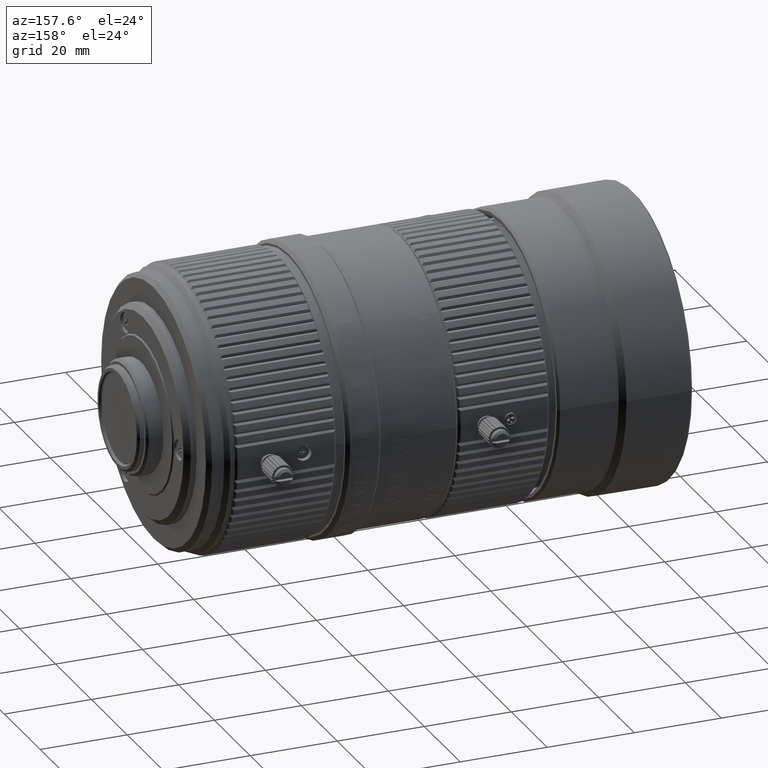
[diagram: clean part render]
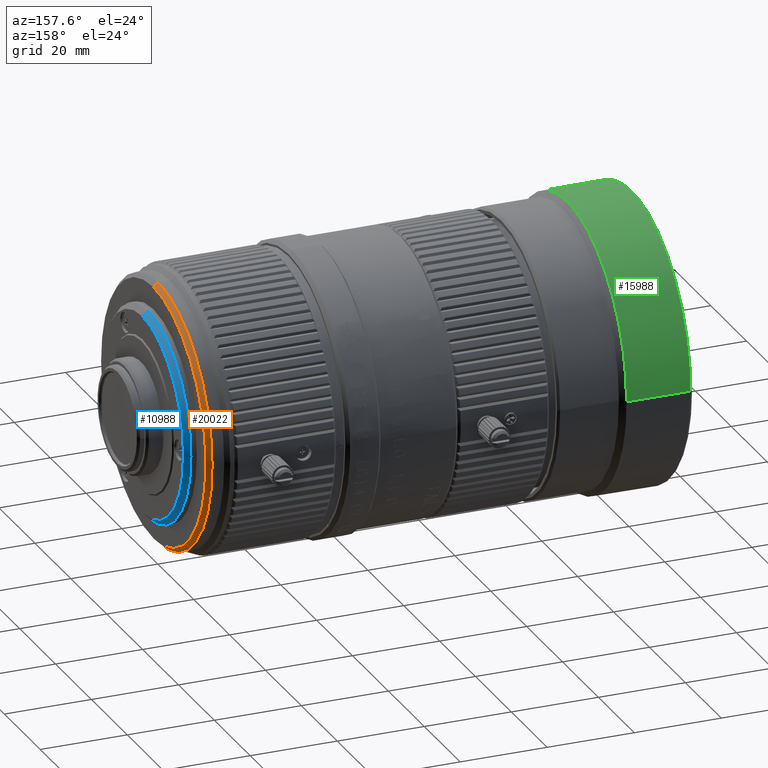
[diagram: same view with three faces highlighted in distinct colors, each labeled with its STEP entity id]
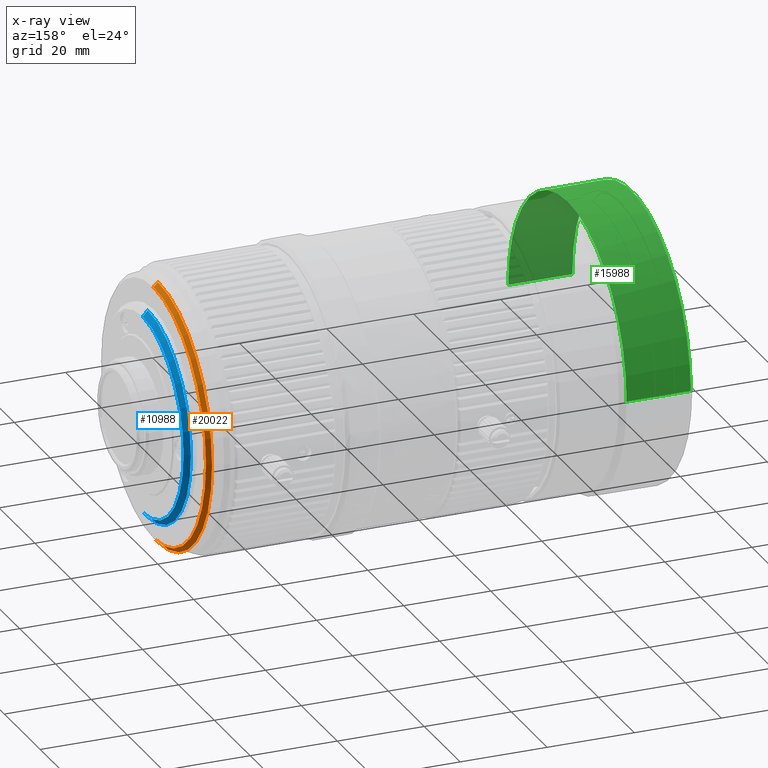
[diagram: x-ray of the same camera — body ghosted, the three highlighted faces saturated]
A machine part, auxiliary view with three faces highlighted in distinct colors.
The next image is the same camera in x-ray (body ghosted, the three faces saturated) — at least one of them is partly hidden behind the body in this view.
Their STEP definitions:

[orange] entity #20022 — the highlighted conical surface has half-angle 45 deg.
#604 = CARTESIAN_POINT ( 'NONE',  ( 3.800000000012460077, 1.894791344673336174E-15, 29.20000000000300133 ) ) ;
#1494 = DIRECTION ( 'NONE',  ( -8.911250732756653049E-17, 0.000000000000000000, 1.000000000000000000 ) ) ;
#2491 = DIRECTION ( 'NONE',  ( -0.7071067811865476838, 4.569417466948932852E-17, 0.7071067811865474617 ) ) ;
#12576 = CARTESIAN_POINT ( 'NONE',  ( 2.800000000092950359, 1.959412666207172087E-15, 30.19999999992251105 ) ) ;
#14540 = EDGE_CURVE ( 'NONE', #40235, #21448, #41818, .T. ) ;
#20022 = ADVANCED_FACE ( 'NONE', ( #36750 ), #38775, .T. ) ;
#20098 = AXIS2_PLACEMENT_3D ( 'NONE', #104114, #55730, #69202 ) ;
#21448 = VERTEX_POINT ( 'NONE', #39853 ) ;
#24792 = AXIS2_PLACEMENT_3D ( 'NONE', #40924, #81357, #1494 ) ;
#26207 = DIRECTION ( 'NONE',  ( -1.000000000000000000, -4.705581031523800255E-16, -1.268826313857300095E-15 ) ) ;
#30123 = ORIENTED_EDGE ( 'NONE', *, *, #14540, .T. ) ;
#30472 = ORIENTED_EDGE ( 'NONE', *, *, #30592, .T. ) ;
#30592 = EDGE_CURVE ( 'NONE', #21448, #33104, #43420, .T. ) ;
#33104 = VERTEX_POINT ( 'NONE', #97056 ) ;
#36476 = VECTOR ( 'NONE', #2491, 1000.000000000000000 ) ;
#36750 = FACE_OUTER_BOUND ( 'NONE', #66139, .T. ) ;
#38775 = CONICAL_SURFACE ( 'NONE', #20098, 30.19999999992251460, 0.7853981633974482790 ) ;
#39853 = CARTESIAN_POINT ( 'NONE',  ( 3.800000000012465406, 5.564302998910580295E-15, -29.20000000000300844 ) ) ;
#40235 = VERTEX_POINT ( 'NONE', #604 ) ;
#40924 = CARTESIAN_POINT ( 'NONE',  ( 3.800000000012462742, 1.894791344673336174E-15, -3.383285189908499902E-15 ) ) ;
#41818 = CIRCLE ( 'NONE', #24792, 29.20000000000300489 ) ;
#43420 = LINE ( 'NONE', #92881, #104673 ) ;
#51869 = CIRCLE ( 'NONE', #84149, 30.20000000000000284 ) ;
#55730 = DIRECTION ( 'NONE',  ( -1.000000000000000000, 6.462132153903694615E-17, -8.616176205204926154E-17 ) ) ;
#66139 = EDGE_LOOP ( 'NONE', ( #30123, #30472, #89127, #71459 ) ) ;
#69202 = DIRECTION ( 'NONE',  ( -8.616176205204923688E-17, 0.000000000000000000, 1.000000000000000000 ) ) ;
#71459 = ORIENTED_EDGE ( 'NONE', *, *, #93931, .F. ) ;
#75858 = DIRECTION ( 'NONE',  ( -0.7071067811865474617, 1.322897802930386694E-16, -0.7071067811865476838 ) ) ;
#76473 = VERTEX_POINT ( 'NONE', #102780 ) ;
#79255 = EDGE_CURVE ( 'NONE', #76473, #33104, #51869, .T. ) ;
#81357 = DIRECTION ( 'NONE',  ( -1.000000000000000000, 6.462132153903694615E-17, -8.616176205204926154E-17 ) ) ;
#84149 = AXIS2_PLACEMENT_3D ( 'NONE', #84199, #26207, #91134 ) ;
#84199 = CARTESIAN_POINT ( 'NONE',  ( 2.800000000000038014, -3.197442310920498168E-14, 4.861959048504847166E-29 ) ) ;
#89127 = ORIENTED_EDGE ( 'NONE', *, *, #79255, .F. ) ;
#91134 = DIRECTION ( 'NONE',  ( -1.263705843426813092E-15, 0.000000000000000000, 1.000000000000000000 ) ) ;
#91932 = LINE ( 'NONE', #12576, #36476 ) ;
#92881 = CARTESIAN_POINT ( 'NONE',  ( 2.800000000092955688, 5.657845999622688771E-15, -30.19999999992251816 ) ) ;
#93931 = EDGE_CURVE ( 'NONE', #40235, #76473, #91932, .T. ) ;
#97056 = CARTESIAN_POINT ( 'NONE',  ( 2.800000000000076206, 5.657845999640060277E-15, -30.20000000001540030 ) ) ;
#102780 = CARTESIAN_POINT ( 'NONE',  ( 2.799999999999999822, 1.959412666213183601E-15, 30.20000000001546070 ) ) ;
#104114 = CARTESIAN_POINT ( 'NONE',  ( 2.800000000092953023, 1.959412666207172087E-15, -3.469446951953614189E-15 ) ) ;
#104673 = VECTOR ( 'NONE', #75858, 1000.000000000000000 ) ;

[blue] entity #10988 — the highlighted conical surface has half-angle 45 deg.
#810 = LINE ( 'NONE', #51377, #93941 ) ;
#1145 = CARTESIAN_POINT ( 'NONE',  ( 2.299999999999999822, 0.000000000000000000, 24.00000000004883915 ) ) ;
#4795 = CARTESIAN_POINT ( 'NONE',  ( 2.300000000047930371, 0.000000000000000000, 0.000000000000000000 ) ) ;
#9541 = EDGE_CURVE ( 'NONE', #18357, #41832, #810, .T. ) ;
#9620 = ORIENTED_EDGE ( 'NONE', *, *, #40803, .F. ) ;
#9742 = CIRCLE ( 'NONE', #36982, 22.80000000001791705 ) ;
#10988 = ADVANCED_FACE ( 'NONE', ( #60704 ), #102573, .T. ) ;
#18357 = VERTEX_POINT ( 'NONE', #73874 ) ;
#20272 = DIRECTION ( 'NONE',  ( 0.000000000000000000, 0.000000000000000000, 1.000000000000000000 ) ) ;
#24516 = DIRECTION ( 'NONE',  ( 0.000000000000000000, 0.000000000000000000, 1.000000000000000000 ) ) ;
#27575 = DIRECTION ( 'NONE',  ( -0.7071067811865474617, 8.659560562354932858E-17, -0.7071067811865474617 ) ) ;
#32488 = VERTEX_POINT ( 'NONE', #100449 ) ;
#32509 = EDGE_CURVE ( 'NONE', #88898, #32488, #52033, .T. ) ;
#36982 = AXIS2_PLACEMENT_3D ( 'NONE', #74511, #88914, #24516 ) ;
#37285 = DIRECTION ( 'NONE',  ( -1.000000000000000000, 0.000000000000000000, 0.000000000000000000 ) ) ;
#40015 = ORIENTED_EDGE ( 'NONE', *, *, #82838, .T. ) ;
#40803 = EDGE_CURVE ( 'NONE', #41832, #32488, #51145, .T. ) ;
#41832 = VERTEX_POINT ( 'NONE', #1145 ) ;
#42552 = DIRECTION ( 'NONE',  ( 0.000000000000000000, 0.000000000000000000, 1.000000000000000000 ) ) ;
#51145 = CIRCLE ( 'NONE', #88586, 24.00000000000000000 ) ;
#51377 = CARTESIAN_POINT ( 'NONE',  ( 2.300000000047930371, 0.000000000000000000, 24.00000000000090949 ) ) ;
#52033 = LINE ( 'NONE', #84494, #93095 ) ;
#60704 = FACE_OUTER_BOUND ( 'NONE', #102777, .T. ) ;
#63710 = ORIENTED_EDGE ( 'NONE', *, *, #9541, .F. ) ;
#64899 = DIRECTION ( 'NONE',  ( -1.000000000000000000, 0.000000000000000000, 0.000000000000000000 ) ) ;
#70343 = ORIENTED_EDGE ( 'NONE', *, *, #32509, .T. ) ;
#73874 = CARTESIAN_POINT ( 'NONE',  ( 3.500000000030922820, 0.000000000000000000, 22.80000000001791705 ) ) ;
#74511 = CARTESIAN_POINT ( 'NONE',  ( 3.500000000030922820, 0.000000000000000000, 0.000000000000000000 ) ) ;
#80562 = AXIS2_PLACEMENT_3D ( 'NONE', #4795, #37285, #20272 ) ;
#82259 = DIRECTION ( 'NONE',  ( -0.7071067811865474617, 0.000000000000000000, 0.7071067811865474617 ) ) ;
#82838 = EDGE_CURVE ( 'NONE', #18357, #88898, #9742, .T. ) ;
#83646 = CARTESIAN_POINT ( 'NONE',  ( 3.500000000030922820, 2.865673510005903086E-15, -22.80000000001791705 ) ) ;
#84494 = CARTESIAN_POINT ( 'NONE',  ( 2.300000000047930371, 2.939152317953759124E-15, -24.00000000000090949 ) ) ;
#88586 = AXIS2_PLACEMENT_3D ( 'NONE', #88873, #64899, #42552 ) ;
#88873 = CARTESIAN_POINT ( 'NONE',  ( 2.299999999999999822, 5.329070518200800303E-15, -3.552713678800500140E-15 ) ) ;
#88898 = VERTEX_POINT ( 'NONE', #83646 ) ;
#88914 = DIRECTION ( 'NONE',  ( -1.000000000000000000, 0.000000000000000000, 0.000000000000000000 ) ) ;
#93095 = VECTOR ( 'NONE', #27575, 1000.000000000000114 ) ;
#93941 = VECTOR ( 'NONE', #82259, 1000.000000000000114 ) ;
#100449 = CARTESIAN_POINT ( 'NONE',  ( 2.299999999999999822, 2.939152317959629038E-15, -24.00000000004883915 ) ) ;
#102573 = CONICAL_SURFACE ( 'NONE', #80562, 24.00000000000090949, 0.7853981633974482790 ) ;
#102777 = EDGE_LOOP ( 'NONE', ( #40015, #70343, #9620, #63710 ) ) ;

[green] entity #15988 — the highlighted cylindrical surface (partial cylindrical patch) has radius 33 mm, axis along (-1, -0, 0).
#1460 = ORIENTED_EDGE ( 'NONE', *, *, #97351, .F. ) ;
#1809 = CARTESIAN_POINT ( 'NONE',  ( 15.24999999998044586, 2.479630380193914981E-15, 5.032406912199492338E-15 ) ) ;
#3497 = CARTESIAN_POINT ( 'NONE',  ( 15.24999999998044053, 7.510781389151722769E-15, -33.00000000007229772 ) ) ;
#4696 = VERTEX_POINT ( 'NONE', #34941 ) ;
#9253 = DIRECTION ( 'NONE',  ( 1.000000000000000000, -4.885662552134999806E-17, -1.524971791574700060E-16 ) ) ;
#9734 = EDGE_CURVE ( 'NONE', #91364, #48572, #61744, .T. ) ;
#10721 = AXIS2_PLACEMENT_3D ( 'NONE', #44854, #27849, #94312 ) ;
#12771 = CARTESIAN_POINT ( 'NONE',  ( 15.24999999998044764, 33.00000000001546141, 1.248335995164625633E-13 ) ) ;
#14656 = DIRECTION ( 'NONE',  ( -1.000000000000000000, 3.871028251218699904E-16, 0.000000000000000000 ) ) ;
#15988 = ADVANCED_FACE ( 'NONE', ( #70574 ), #79095, .T. ) ;
#18267 = VECTOR ( 'NONE', #77071, 1000.000000000000000 ) ;
#19601 = CARTESIAN_POINT ( 'NONE',  ( 15.25000000000001243, 32.99999999999995026, 1.248335995164062955E-13 ) ) ;
#20805 = ORIENTED_EDGE ( 'NONE', *, *, #41358, .F. ) ;
#21437 = CARTESIAN_POINT ( 'NONE',  ( 15.24999999998044586, -33.00000000001546141, 8.474091755303837753E-29 ) ) ;
#22242 = ORIENTED_EDGE ( 'NONE', *, *, #102949, .T. ) ;
#23276 = AXIS2_PLACEMENT_3D ( 'NONE', #95055, #14656, #38129 ) ;
#27849 = DIRECTION ( 'NONE',  ( 1.000000000000000000, -4.885662552134999806E-17, -1.524971791574700060E-16 ) ) ;
#28928 = CIRCLE ( 'NONE', #37415, 33.00000000001546141 ) ;
#29457 = CARTESIAN_POINT ( 'NONE',  ( 0.5000000000000027756, 32.99999999997044853, -5.990412499022058397E-27 ) ) ;
#31354 = VERTEX_POINT ( 'NONE', #21437 ) ;
#33129 = EDGE_LOOP ( 'NONE', ( #1460, #43227, #20805, #22242, #81410 ) ) ;
#34941 = CARTESIAN_POINT ( 'NONE',  ( 0.4999999999999772404, -32.99999999997041300, 4.041334437176654719E-15 ) ) ;
#35585 = LINE ( 'NONE', #19601, #18267 ) ;
#37415 = AXIS2_PLACEMENT_3D ( 'NONE', #1809, #9253, #42296 ) ;
#37986 = CIRCLE ( 'NONE', #80507, 33.00000000000000711 ) ;
#38129 = DIRECTION ( 'NONE',  ( -3.679716464193226244E-16, -1.000000000000000000, 0.000000000000000000 ) ) ;
#41358 = EDGE_CURVE ( 'NONE', #31354, #91364, #28928, .T. ) ;
#42296 = DIRECTION ( 'NONE',  ( 0.000000000000000000, -1.000000000000000000, -1.524971791574863749E-16 ) ) ;
#43227 = ORIENTED_EDGE ( 'NONE', *, *, #9734, .F. ) ;
#44854 = CARTESIAN_POINT ( 'NONE',  ( 15.24999999998044586, 2.479630380193914981E-15, 5.032406912199492338E-15 ) ) ;
#48572 = VERTEX_POINT ( 'NONE', #12771 ) ;
#52161 = VECTOR ( 'NONE', #54905, 1000.000000000000000 ) ;
#54905 = DIRECTION ( 'NONE',  ( -1.000000000000000000, 3.871028251218699904E-16, 0.000000000000000000 ) ) ;
#60010 = VERTEX_POINT ( 'NONE', #29457 ) ;
#60796 = CARTESIAN_POINT ( 'NONE',  ( 15.24999999999998757, -33.00000000000006395, 1.207922650792200356E-13 ) ) ;
#61744 = CIRCLE ( 'NONE', #10721, 33.00000000001546141 ) ;
#69826 = LINE ( 'NONE', #60796, #52161 ) ;
#70574 = FACE_OUTER_BOUND ( 'NONE', #33129, .T. ) ;
#73675 = DIRECTION ( 'NONE',  ( -3.876844131917863593E-16, -1.000000000000000000, -3.552713678800500929E-15 ) ) ;
#77071 = DIRECTION ( 'NONE',  ( -1.000000000000000000, 3.871028251218699904E-16, 0.000000000000000000 ) ) ;
#79095 = CYLINDRICAL_SURFACE ( 'NONE', #23276, 33.00000000000000711 ) ;
#80507 = AXIS2_PLACEMENT_3D ( 'NONE', #89654, #80616, #73675 ) ;
#80616 = DIRECTION ( 'NONE',  ( 1.000000000000000000, -3.871028251218699904E-16, -0.000000000000000000 ) ) ;
#81410 = ORIENTED_EDGE ( 'NONE', *, *, #92545, .T. ) ;
#89654 = CARTESIAN_POINT ( 'NONE',  ( 0.4999999999999900080, -4.758093851146040942E-14, 1.207922650792200356E-13 ) ) ;
#91364 = VERTEX_POINT ( 'NONE', #3497 ) ;
#92545 = EDGE_CURVE ( 'NONE', #4696, #60010, #37986, .T. ) ;
#94312 = DIRECTION ( 'NONE',  ( 0.000000000000000000, -1.000000000000000000, -1.524971791574863749E-16 ) ) ;
#95055 = CARTESIAN_POINT ( 'NONE',  ( 15.25000000000000000, -5.329070518200799988E-14, 1.207922650792200356E-13 ) ) ;
#97351 = EDGE_CURVE ( 'NONE', #48572, #60010, #35585, .T. ) ;
#102949 = EDGE_CURVE ( 'NONE', #31354, #4696, #69826, .T. ) ;